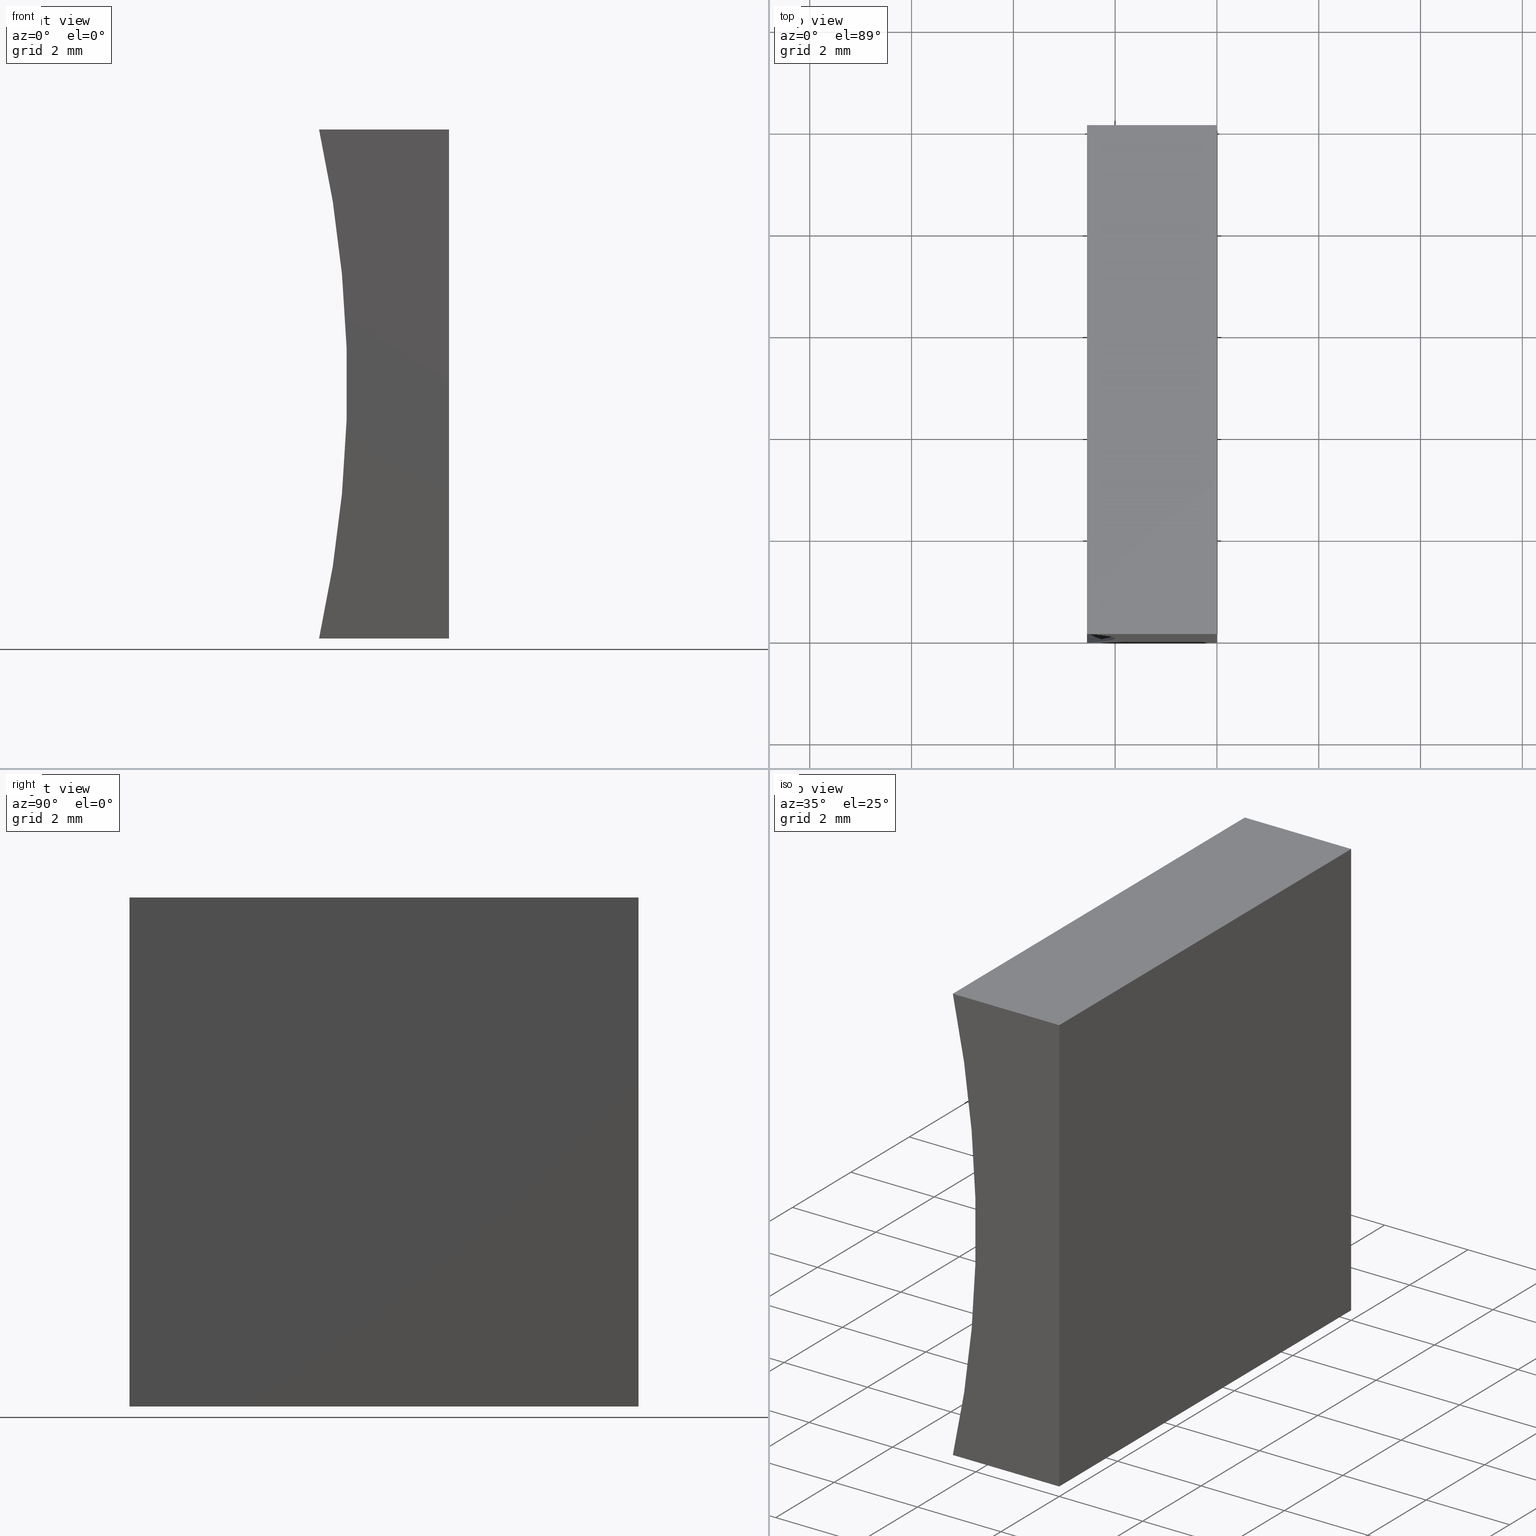
[diagram: canonical four-view strip — front | top / right | iso, engineering-drawing reading convention]
A machine part, canonical four-view strip (front | top / right | iso — engineering-drawing reading convention). The complete STEP part file that produces these views, byte-faithful:
ISO-10303-21;
HEADER;
FILE_DESCRIPTION (( 'STEP AP214' ),
    '1' );
FILE_NAME ('155468.STEP',
    '2019-07-03T05:50:35',
    ( 'user' ),
    ( '΢���й�' ),
    'SwSTEP 2.0',
    'SolidWorks 2016',
    '' );
FILE_SCHEMA (( 'AUTOMOTIVE_DESIGN' ));
ENDSEC;

DATA;
#1 = SURFACE_STYLE_FILL_AREA ( #127 ) ;
#2 = EDGE_CURVE ( 'NONE', #179, #12, #175, .T. ) ;
#3 = VERTEX_POINT ( 'NONE', #155 ) ;
#4 = ORIENTED_EDGE ( 'NONE', *, *, #74, .T. ) ;
#5 = FACE_OUTER_BOUND ( 'NONE', #80, .T. ) ;
#6 = CARTESIAN_POINT ( 'NONE',  ( -24.92000000000000200, 10.00000000000000000, 5.000000000000003600 ) ) ;
#7 = CARTESIAN_POINT ( 'NONE',  ( 0.0000000000000000000, 0.0000000000000000000, 0.0000000000000000000 ) ) ;
#8 = FACE_OUTER_BOUND ( 'NONE', #28, .T. ) ;
#9 = DIRECTION ( 'NONE',  ( 0.0000000000000000000, 0.0000000000000000000, -1.000000000000000000 ) ) ;
#10 = MANIFOLD_SOLID_BREP ( '͹̨-����1', #116 ) ;
#11 = FACE_OUTER_BOUND ( 'NONE', #83, .T. ) ;
#12 = VERTEX_POINT ( 'NONE', #69 ) ;
#13 = DIRECTION ( 'NONE',  ( 0.0000000000000000000, 0.0000000000000000000, 1.000000000000000000 ) ) ;
#14 = CARTESIAN_POINT ( 'NONE',  ( 0.0000000000000000000, 10.00000000000000000, 0.0000000000000000000 ) ) ;
#15 = ORIENTED_EDGE ( 'NONE', *, *, #187, .T. ) ;
#16 = ORIENTED_EDGE ( 'NONE', *, *, #26, .T. ) ;
#17 = EDGE_CURVE ( 'NONE', #70, #179, #79, .T. ) ;
#18 = ADVANCED_FACE ( 'NONE', ( #40 ), #27, .F. ) ;
#19 = FILL_AREA_STYLE ('',( #102 ) ) ;
#20 = DIRECTION ( 'NONE',  ( -1.000000000000000000, 0.0000000000000000000, -6.797444814751699500E-016 ) ) ;
#21 = SURFACE_SIDE_STYLE ('',( #1 ) ) ;
#22 = AXIS2_PLACEMENT_3D ( 'NONE', #78, #188, #164 ) ;
#23 = DIRECTION ( 'NONE',  ( 0.0000000000000000000, 1.000000000000000000, 0.0000000000000000000 ) ) ;
#24 =( NAMED_UNIT ( * ) PLANE_ANGLE_UNIT ( ) SI_UNIT ( $, .RADIAN. ) );
#25 = VECTOR ( 'NONE', #94, 1000.000000000000000 ) ;
#26 = EDGE_CURVE ( 'NONE', #171, #70, #189, .T. ) ;
#27 = PLANE ( 'NONE',  #181 ) ;
#28 = EDGE_LOOP ( 'NONE', ( #15, #93, #64, #30 ) ) ;
#29 = VECTOR ( 'NONE', #163, 1000.000000000000000 ) ;
#30 = ORIENTED_EDGE ( 'NONE', *, *, #150, .T. ) ;
#31 = EDGE_LOOP ( 'NONE', ( #42, #81, #65, #185 ) ) ;
#32 =( GEOMETRIC_REPRESENTATION_CONTEXT ( 3 ) GLOBAL_UNCERTAINTY_ASSIGNED_CONTEXT ( ( #182 ) ) GLOBAL_UNIT_ASSIGNED_CONTEXT ( ( #60, #143, #123 ) ) REPRESENTATION_CONTEXT ( 'NONE', 'WORKASPACE' ) );
#33 =( NAMED_UNIT ( * ) SI_UNIT ( $, .STERADIAN. ) SOLID_ANGLE_UNIT ( ) );
#34 = EDGE_CURVE ( 'NONE', #3, #70, #200, .T. ) ;
#35 = CARTESIAN_POINT ( 'NONE',  ( -2.552022889854344400, 10.00000000000000000, 10.00000000000000200 ) ) ;
#36 = PRODUCT_CONTEXT ( 'NONE', #165, 'mechanical' ) ;
#37 = DIRECTION ( 'NONE',  ( -6.797444814751702500E-016, 0.0000000000000000000, -1.000000000000000000 ) ) ;
#38 = CARTESIAN_POINT ( 'NONE',  ( 0.0000000000000000000, 10.00000000000000000, 0.0000000000000000000 ) ) ;
#39 = ADVANCED_BREP_SHAPE_REPRESENTATION ( '155468', ( #10, #63 ), #151 ) ;
#40 = FACE_OUTER_BOUND ( 'NONE', #31, .T. ) ;
#41 = CIRCLE ( 'NONE', #199, 22.91999999999999800 ) ;
#42 = ORIENTED_EDGE ( 'NONE', *, *, #17, .F. ) ;
#43 = PLANE ( 'NONE',  #57 ) ;
#44 = LINE ( 'NONE', #173, #169 ) ;
#45 = DIRECTION ( 'NONE',  ( 6.123233995736766000E-017, 0.0000000000000000000, 1.000000000000000000 ) ) ;
#46 = CARTESIAN_POINT ( 'NONE',  ( 6.123233995736766300E-016, 10.00000000000000000, 10.00000000000000000 ) ) ;
#47 = PRESENTATION_STYLE_ASSIGNMENT (( #99 ) ) ;
#48 = EDGE_CURVE ( 'NONE', #109, #179, #137, .T. ) ;
#49 = VECTOR ( 'NONE', #133, 1000.000000000000000 ) ;
#50 = DIRECTION ( 'NONE',  ( -6.123233995736766000E-017, -0.0000000000000000000, -1.000000000000000000 ) ) ;
#51 = CARTESIAN_POINT ( 'NONE',  ( 0.0000000000000000000, 10.00000000000000000, 0.0000000000000000000 ) ) ;
#52 = ORIENTED_EDGE ( 'NONE', *, *, #187, .F. ) ;
#53 = UNCERTAINTY_MEASURE_WITH_UNIT (LENGTH_MEASURE( 1.000000000000000100E-005 ), #176, 'distance_accuracy_value', 'NONE');
#54 = VECTOR ( 'NONE', #73, 1000.000000000000000 ) ;
#55 = PLANE ( 'NONE',  #22 ) ;
#56 = CARTESIAN_POINT ( 'NONE',  ( 0.0000000000000000000, 0.0000000000000000000, 0.0000000000000000000 ) ) ;
#57 = AXIS2_PLACEMENT_3D ( 'NONE', #77, #95, #45 ) ;
#58 = VECTOR ( 'NONE', #82, 1000.000000000000000 ) ;
#59 = PLANE ( 'NONE',  #184 ) ;
#60 =( LENGTH_UNIT ( ) NAMED_UNIT ( * ) SI_UNIT ( .MILLI., .METRE. ) );
#61 = EDGE_LOOP ( 'NONE', ( #62, #203, #96, #4 ) ) ;
#62 = ORIENTED_EDGE ( 'NONE', *, *, #147, .T. ) ;
#63 = AXIS2_PLACEMENT_3D ( 'NONE', #56, #72, #126 ) ;
#64 = ORIENTED_EDGE ( 'NONE', *, *, #136, .T. ) ;
#65 = ORIENTED_EDGE ( 'NONE', *, *, #147, .F. ) ;
#66 = CARTESIAN_POINT ( 'NONE',  ( 6.123233995736766300E-016, 10.00000000000000000, 10.00000000000000000 ) ) ;
#67 = ORIENTED_EDGE ( 'NONE', *, *, #17, .T. ) ;
#68 = COLOUR_RGB ( '',1.000000000000000000, 1.000000000000000000, 1.000000000000000000 ) ;
#69 = CARTESIAN_POINT ( 'NONE',  ( -2.552022889854344400, 0.0000000000000000000, 10.00000000000000200 ) ) ;
#70 = VERTEX_POINT ( 'NONE', #92 ) ;
#71 = DIRECTION ( 'NONE',  ( 1.000000000000000000, 0.0000000000000000000, 6.797444814751699500E-016 ) ) ;
#72 = DIRECTION ( 'NONE',  ( 0.0000000000000000000, 0.0000000000000000000, 1.000000000000000000 ) ) ;
#73 = DIRECTION ( 'NONE',  ( -0.0000000000000000000, -1.000000000000000000, -0.0000000000000000000 ) ) ;
#74 = EDGE_CURVE ( 'NONE', #110, #12, #145, .T. ) ;
#75 = ORIENTED_EDGE ( 'NONE', *, *, #74, .F. ) ;
#76 = CARTESIAN_POINT ( 'NONE',  ( -2.552022889854344400, 10.00000000000000000, 10.00000000000000200 ) ) ;
#77 = CARTESIAN_POINT ( 'NONE',  ( 0.0000000000000000000, 10.00000000000000000, 0.0000000000000000000 ) ) ;
#78 = CARTESIAN_POINT ( 'NONE',  ( -24.92000000000000200, 10.00000000000000000, 5.000000000000003600 ) ) ;
#79 = LINE ( 'NONE', #7, #104 ) ;
#80 = EDGE_LOOP ( 'NONE', ( #114, #75, #106, #97 ) ) ;
#81 = ORIENTED_EDGE ( 'NONE', *, *, #34, .F. ) ;
#82 = DIRECTION ( 'NONE',  ( -0.0000000000000000000, -1.000000000000000000, -0.0000000000000000000 ) ) ;
#83 = EDGE_LOOP ( 'NONE', ( #67, #112, #52, #16 ) ) ;
#84 = PLANE ( 'NONE',  #131 ) ;
#85 = EDGE_LOOP ( 'NONE', ( #86, #122, #113, #191 ) ) ;
#86 = ORIENTED_EDGE ( 'NONE', *, *, #34, .T. ) ;
#87 = PRESENTATION_STYLE_ASSIGNMENT (( #144 ) ) ;
#88 = ADVANCED_FACE ( 'NONE', ( #5 ), #128, .F. ) ;
#89 = CARTESIAN_POINT ( 'NONE',  ( 6.123233995736766300E-016, 10.00000000000000000, 10.00000000000000000 ) ) ;
#90 = DIRECTION ( 'NONE',  ( -6.797444814751699500E-016, 0.0000000000000000000, 1.000000000000000000 ) ) ;
#91 =( GEOMETRIC_REPRESENTATION_CONTEXT ( 3 ) GLOBAL_UNCERTAINTY_ASSIGNED_CONTEXT ( ( #53 ) ) GLOBAL_UNIT_ASSIGNED_CONTEXT ( ( #176, #24, #33 ) ) REPRESENTATION_CONTEXT ( 'NONE', 'WORKASPACE' ) );
#92 = CARTESIAN_POINT ( 'NONE',  ( 0.0000000000000000000, 0.0000000000000000000, 0.0000000000000000000 ) ) ;
#93 = ORIENTED_EDGE ( 'NONE', *, *, #202, .T. ) ;
#94 = DIRECTION ( 'NONE',  ( 1.000000000000000000, -0.0000000000000000000, -6.797444814751702500E-016 ) ) ;
#95 = DIRECTION ( 'NONE',  ( -1.000000000000000000, 0.0000000000000000000, 6.123233995736766000E-017 ) ) ;
#96 = ORIENTED_EDGE ( 'NONE', *, *, #136, .F. ) ;
#97 = ORIENTED_EDGE ( 'NONE', *, *, #48, .T. ) ;
#98 = DIRECTION ( 'NONE',  ( -0.0000000000000000000, -1.000000000000000000, -0.0000000000000000000 ) ) ;
#99 = SURFACE_STYLE_USAGE ( .BOTH. , #100 ) ;
#100 = SURFACE_SIDE_STYLE ('',( #101 ) ) ;
#101 = SURFACE_STYLE_FILL_AREA ( #19 ) ;
#102 = FILL_AREA_STYLE_COLOUR ( '', #154 ) ;
#103 = MECHANICAL_DESIGN_GEOMETRIC_PRESENTATION_REPRESENTATION (  '', ( #162 ), #91 ) ;
#104 = VECTOR ( 'NONE', #20, 1000.000000000000000 ) ;
#105 = PRODUCT_DEFINITION_CONTEXT ( 'detailed design', #139, 'design' ) ;
#106 = ORIENTED_EDGE ( 'NONE', *, *, #202, .F. ) ;
#107 = APPLICATION_PROTOCOL_DEFINITION ( 'draft international standard', 'automotive_design', 1998, #139 ) ;
#108 = ADVANCED_FACE ( 'NONE', ( #8 ), #55, .T. ) ;
#109 = VERTEX_POINT ( 'NONE', #130 ) ;
#110 = VERTEX_POINT ( 'NONE', #35 ) ;
#111 = STYLED_ITEM ( 'NONE', ( #87 ), #39 ) ;
#112 = ORIENTED_EDGE ( 'NONE', *, *, #48, .F. ) ;
#113 = ORIENTED_EDGE ( 'NONE', *, *, #150, .F. ) ;
#114 = ORIENTED_EDGE ( 'NONE', *, *, #2, .T. ) ;
#115 = EDGE_CURVE ( 'NONE', #201, #3, #156, .T. ) ;
#116 = CLOSED_SHELL ( 'NONE', ( #197, #88, #166, #140, #108, #18 ) ) ;
#117 = DIRECTION ( 'NONE',  ( -0.0000000000000000000, -1.000000000000000000, -0.0000000000000000000 ) ) ;
#118 = MECHANICAL_DESIGN_GEOMETRIC_PRESENTATION_REPRESENTATION (  '', ( #111 ), #32 ) ;
#119 = UNCERTAINTY_MEASURE_WITH_UNIT (LENGTH_MEASURE( 1.000000000000000100E-005 ), #121, 'distance_accuracy_value', 'NONE');
#120 = FACE_OUTER_BOUND ( 'NONE', #85, .T. ) ;
#121 =( LENGTH_UNIT ( ) NAMED_UNIT ( * ) SI_UNIT ( .MILLI., .METRE. ) );
#122 = ORIENTED_EDGE ( 'NONE', *, *, #26, .F. ) ;
#123 =( NAMED_UNIT ( * ) SI_UNIT ( $, .STERADIAN. ) SOLID_ANGLE_UNIT ( ) );
#124 = PRESENTATION_LAYER_ASSIGNMENT (  '', '', ( #162 ) ) ;
#125 = FILL_AREA_STYLE_COLOUR ( '', #68 ) ;
#126 = DIRECTION ( 'NONE',  ( 1.000000000000000000, 0.0000000000000000000, 0.0000000000000000000 ) ) ;
#127 = FILL_AREA_STYLE ('',( #125 ) ) ;
#128 = CYLINDRICAL_SURFACE ( 'NONE', #174, 22.91999999999999800 ) ;
#129 = FACE_OUTER_BOUND ( 'NONE', #61, .T. ) ;
#130 = CARTESIAN_POINT ( 'NONE',  ( -2.552022889854347600, 10.00000000000000000, -3.469446951953614200E-015 ) ) ;
#131 = AXIS2_PLACEMENT_3D ( 'NONE', #46, #37, #170 ) ;
#132 = PRODUCT_DEFINITION_FORMATION_WITH_SPECIFIED_SOURCE ( '�κ�', '', #152, .NOT_KNOWN. ) ;
#133 = DIRECTION ( 'NONE',  ( -6.123233995736766000E-017, -0.0000000000000000000, -1.000000000000000000 ) ) ;
#134 = VECTOR ( 'NONE', #158, 1000.000000000000000 ) ;
#135 = PRODUCT_DEFINITION ( 'δ֪', '', #132, #105 ) ;
#136 = EDGE_CURVE ( 'NONE', #110, #201, #172, .T. ) ;
#137 = LINE ( 'NONE', #148, #180 ) ;
#138 = CARTESIAN_POINT ( 'NONE',  ( -24.92000000000000200, 0.0000000000000000000, 5.000000000000003600 ) ) ;
#139 = APPLICATION_CONTEXT ( 'automotive_design' ) ;
#140 = ADVANCED_FACE ( 'NONE', ( #120 ), #43, .F. ) ;
#141 =( NAMED_UNIT ( * ) PLANE_ANGLE_UNIT ( ) SI_UNIT ( $, .RADIAN. ) );
#142 = DIRECTION ( 'NONE',  ( -0.0000000000000000000, -1.000000000000000000, -0.0000000000000000000 ) ) ;
#143 =( NAMED_UNIT ( * ) PLANE_ANGLE_UNIT ( ) SI_UNIT ( $, .RADIAN. ) );
#144 = SURFACE_STYLE_USAGE ( .BOTH. , #21 ) ;
#145 = LINE ( 'NONE', #76, #29 ) ;
#146 = CARTESIAN_POINT ( 'NONE',  ( 0.0000000000000000000, 10.00000000000000000, 0.0000000000000000000 ) ) ;
#147 = EDGE_CURVE ( 'NONE', #12, #3, #44, .T. ) ;
#148 = CARTESIAN_POINT ( 'NONE',  ( -2.552022889854347600, 10.00000000000000000, -3.469446951953614200E-015 ) ) ;
#149 = CARTESIAN_POINT ( 'NONE',  ( 6.123233995736766300E-016, 10.00000000000000000, 10.00000000000000000 ) ) ;
#150 = EDGE_CURVE ( 'NONE', #201, #171, #194, .T. ) ;
#151 =( GEOMETRIC_REPRESENTATION_CONTEXT ( 3 ) GLOBAL_UNCERTAINTY_ASSIGNED_CONTEXT ( ( #119 ) ) GLOBAL_UNIT_ASSIGNED_CONTEXT ( ( #121, #141, #153 ) ) REPRESENTATION_CONTEXT ( 'NONE', 'WORKASPACE' ) );
#152 = PRODUCT ( '155468', '155468', '', ( #36 ) ) ;
#153 =( NAMED_UNIT ( * ) SI_UNIT ( $, .STERADIAN. ) SOLID_ANGLE_UNIT ( ) );
#154 = COLOUR_RGB ( '',1.000000000000000000, 1.000000000000000000, 1.000000000000000000 ) ;
#155 = CARTESIAN_POINT ( 'NONE',  ( 6.123233995736766300E-016, 0.0000000000000000000, 10.00000000000000000 ) ) ;
#156 = LINE ( 'NONE', #89, #54 ) ;
#157 = AXIS2_PLACEMENT_3D ( 'NONE', #138, #117, #13 ) ;
#158 = DIRECTION ( 'NONE',  ( -1.000000000000000000, 0.0000000000000000000, -6.797444814751699500E-016 ) ) ;
#159 = DIRECTION ( 'NONE',  ( 0.0000000000000000000, 0.0000000000000000000, 1.000000000000000000 ) ) ;
#160 = DIRECTION ( 'NONE',  ( -0.0000000000000000000, -1.000000000000000000, -0.0000000000000000000 ) ) ;
#161 = SHAPE_DEFINITION_REPRESENTATION ( #177, #39 ) ;
#162 = STYLED_ITEM ( 'NONE', ( #47 ), #10 ) ;
#163 = DIRECTION ( 'NONE',  ( -0.0000000000000000000, -1.000000000000000000, -0.0000000000000000000 ) ) ;
#164 = DIRECTION ( 'NONE',  ( 0.0000000000000000000, -0.0000000000000000000, 1.000000000000000000 ) ) ;
#165 = APPLICATION_CONTEXT ( 'automotive_design' ) ;
#166 = ADVANCED_FACE ( 'NONE', ( #129 ), #84, .F. ) ;
#167 = CARTESIAN_POINT ( 'NONE',  ( -24.92000000000000200, 10.00000000000000000, 5.000000000000003600 ) ) ;
#168 = PRESENTATION_LAYER_ASSIGNMENT (  '', '', ( #111 ) ) ;
#169 = VECTOR ( 'NONE', #196, 1000.000000000000000 ) ;
#170 = DIRECTION ( 'NONE',  ( -1.000000000000000000, 0.0000000000000000000, 6.797444814751702500E-016 ) ) ;
#171 = VERTEX_POINT ( 'NONE', #38 ) ;
#172 = LINE ( 'NONE', #66, #25 ) ;
#173 = CARTESIAN_POINT ( 'NONE',  ( 6.123233995736766300E-016, 0.0000000000000000000, 10.00000000000000000 ) ) ;
#174 = AXIS2_PLACEMENT_3D ( 'NONE', #167, #160, #9 ) ;
#175 = CIRCLE ( 'NONE', #157, 22.91999999999999800 ) ;
#176 =( LENGTH_UNIT ( ) NAMED_UNIT ( * ) SI_UNIT ( .MILLI., .METRE. ) );
#177 = PRODUCT_DEFINITION_SHAPE ( 'NONE', 'NONE',  #135 ) ;
#178 = LINE ( 'NONE', #14, #134 ) ;
#179 = VERTEX_POINT ( 'NONE', #193 ) ;
#180 = VECTOR ( 'NONE', #98, 1000.000000000000000 ) ;
#181 = AXIS2_PLACEMENT_3D ( 'NONE', #195, #23, #190 ) ;
#182 = UNCERTAINTY_MEASURE_WITH_UNIT (LENGTH_MEASURE( 1.000000000000000100E-005 ), #60, 'distance_accuracy_value', 'NONE');
#183 = CARTESIAN_POINT ( 'NONE',  ( 0.0000000000000000000, 0.0000000000000000000, 0.0000000000000000000 ) ) ;
#184 = AXIS2_PLACEMENT_3D ( 'NONE', #198, #90, #71 ) ;
#185 = ORIENTED_EDGE ( 'NONE', *, *, #2, .F. ) ;
#186 = APPLICATION_PROTOCOL_DEFINITION ( 'draft international standard', 'automotive_design', 1998, #165 ) ;
#187 = EDGE_CURVE ( 'NONE', #171, #109, #178, .T. ) ;
#188 = DIRECTION ( 'NONE',  ( 0.0000000000000000000, 1.000000000000000000, 0.0000000000000000000 ) ) ;
#189 = LINE ( 'NONE', #146, #58 ) ;
#190 = DIRECTION ( 'NONE',  ( 0.0000000000000000000, -0.0000000000000000000, 1.000000000000000000 ) ) ;
#191 = ORIENTED_EDGE ( 'NONE', *, *, #115, .T. ) ;
#192 = VECTOR ( 'NONE', #50, 1000.000000000000000 ) ;
#193 = CARTESIAN_POINT ( 'NONE',  ( -2.552022889854347600, 0.0000000000000000000, -3.469446951953614200E-015 ) ) ;
#194 = LINE ( 'NONE', #51, #49 ) ;
#195 = CARTESIAN_POINT ( 'NONE',  ( -24.92000000000000200, 0.0000000000000000000, 5.000000000000003600 ) ) ;
#196 = DIRECTION ( 'NONE',  ( 1.000000000000000000, -0.0000000000000000000, -6.797444814751702500E-016 ) ) ;
#197 = ADVANCED_FACE ( 'NONE', ( #11 ), #59, .F. ) ;
#198 = CARTESIAN_POINT ( 'NONE',  ( 0.0000000000000000000, 10.00000000000000000, 0.0000000000000000000 ) ) ;
#199 = AXIS2_PLACEMENT_3D ( 'NONE', #6, #142, #159 ) ;
#200 = LINE ( 'NONE', #183, #192 ) ;
#201 = VERTEX_POINT ( 'NONE', #149 ) ;
#202 = EDGE_CURVE ( 'NONE', #109, #110, #41, .T. ) ;
#203 = ORIENTED_EDGE ( 'NONE', *, *, #115, .F. ) ;
#204 = PRODUCT_RELATED_PRODUCT_CATEGORY ( 'part', '', ( #152 ) ) ;
ENDSEC;
END-ISO-10303-21;
